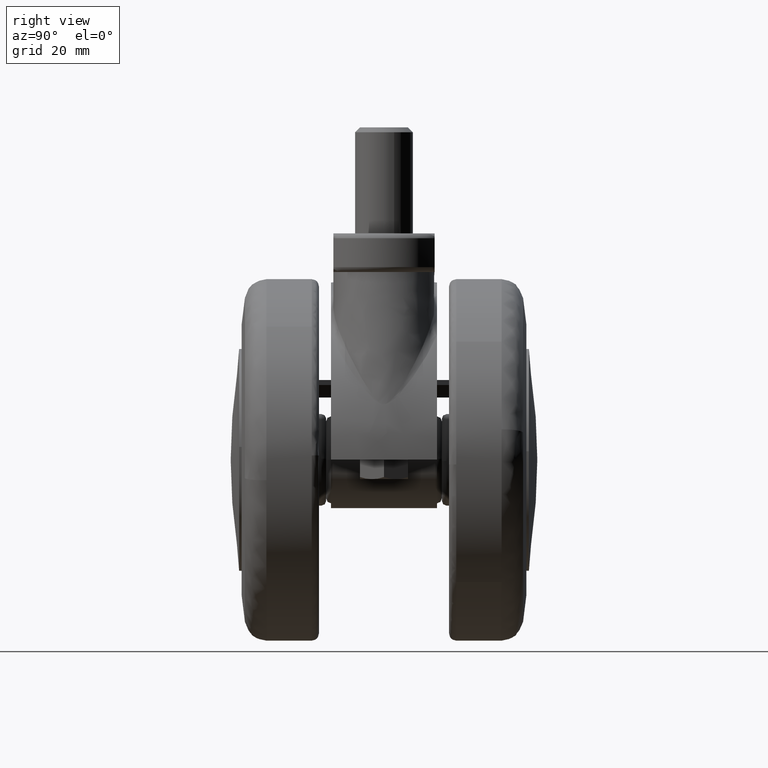
[diagram: clean part render]
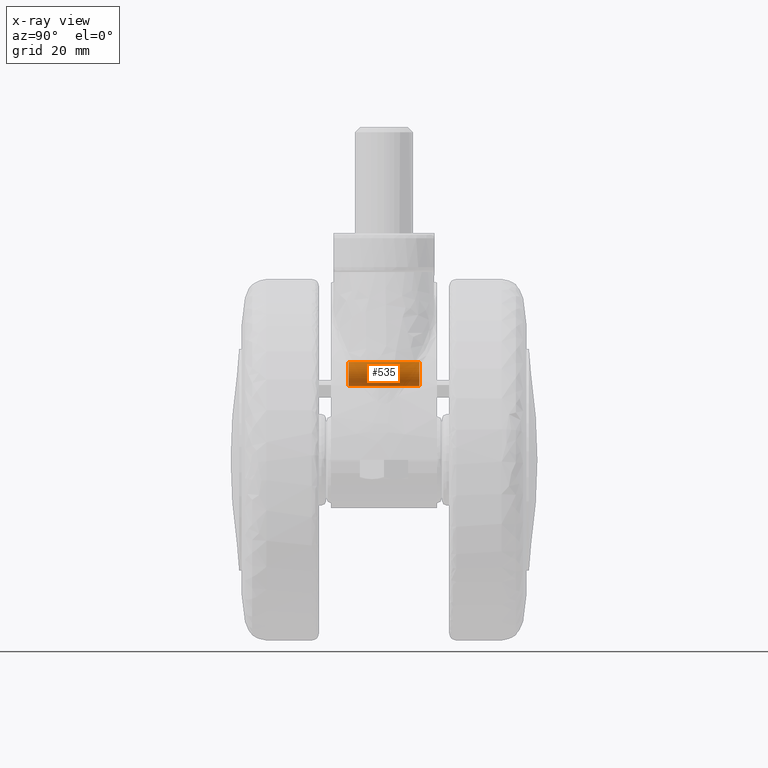
[diagram: x-ray — body ghosted, one internal face saturated and labeled with its STEP entity id]
A machine part, right view, then the same camera in x-ray: the body is ghosted and one INTERNAL B-rep face — a face not visible from any outside direction — is saturated and labeled: STEP entity #535.
In plain terms, the highlighted face is a freeform B-spline surface patch.
Its self-contained STEP definition (entity closure, byte-faithful):
#416=CARTESIAN_POINT('',(-26.489368041331382,7.717500000000200,15.845553198639694));
#417=CARTESIAN_POINT('',(-24.731960584343895,7.717500000000200,14.478945825293152));
#418=CARTESIAN_POINT('',(-23.171575877114549,7.717500000000200,16.066804839250370));
#419=CARTESIAN_POINT('',(-21.419302716364914,7.717500000000200,17.849930962135829));
#420=CARTESIAN_POINT('',(-23.202428839250370,7.717500000000200,19.602204122885450));
#421=CARTESIAN_POINT('',(-24.985554962135822,7.717500000000200,21.354477283635077));
#422=CARTESIAN_POINT('',(-26.737828122885450,7.717500000000200,19.571351160749629));
#423=CARTESIAN_POINT('',(-26.489368041331382,-7.726687500000200,15.845553198639694));
#424=CARTESIAN_POINT('',(-24.731960584343895,-7.726687500000200,14.478945825293152));
#425=CARTESIAN_POINT('',(-23.171575877114549,-7.726687500000200,16.066804839250370));
#426=CARTESIAN_POINT('',(-21.419302716364914,-7.726687500000201,17.849930962135829));
#427=CARTESIAN_POINT('',(-23.202428839250370,-7.726687500000200,19.602204122885450));
#428=CARTESIAN_POINT('',(-24.985554962135822,-7.726687500000201,21.354477283635077));
#429=CARTESIAN_POINT('',(-26.737828122885450,-7.726687500000200,19.571351160749629));
#437=(BOUNDED_SURFACE()B_SPLINE_SURFACE(2,1,((#416,#423),(#417,#424),(#418,#425),(#419,#426),(#420,#427),(#421,#428),(#422,#429)),.UNSPECIFIED.,.F.,.F.,.U.)B_SPLINE_SURFACE_WITH_KNOTS((3,2,2,3),(2,2),(0.0,3.810764773832473,7.952900397563421,12.095036021294369),(0.0,15.444187500000400),.UNSPECIFIED.)GEOMETRIC_REPRESENTATION_ITEM()RATIONAL_B_SPLINE_SURFACE(((0.956886118190660,0.956886118190660),(0.730538238691624,0.730538238691624),(1.0,1.0),(0.707106781186548,0.707106781186548),(1.0,1.0),(0.707106781186548,0.707106781186548),(1.0,1.0)))REPRESENTATION_ITEM('')SURFACE());
#438=CARTESIAN_POINT('',(-26.489368041334689,-7.350000000000191,15.845553198642261));
#439=VERTEX_POINT('',#438);
#440=CARTESIAN_POINT('',(-24.954702000000001,-7.350000000000190,15.319077999999999));
#441=VERTEX_POINT('',#440);
#442=CARTESIAN_POINT('',(-26.489368041334689,-7.350000000000191,15.845553198642262));
#443=CARTESIAN_POINT('',(-25.812340053595403,-7.350000000000189,15.319077999999996));
#444=CARTESIAN_POINT('',(-24.954702000000001,-7.350000000000190,15.319077999999999));
#452=(BOUNDED_CURVE()B_SPLINE_CURVE(2,(#442,#443,#444),.UNSPECIFIED.,.F.,.U.)B_SPLINE_CURVE_WITH_KNOTS((3,3),(0.893802175131246,1.0),.UNSPECIFIED.)CURVE()GEOMETRIC_REPRESENTATION_ITEM()RATIONAL_B_SPLINE_CURVE((0.856866802909945,0.875581508972813,1.0))REPRESENTATION_ITEM(''));
#453=EDGE_CURVE('',#439,#441,#452,.T.);
#454=ORIENTED_EDGE('',*,*,#453,.F.);
#455=CARTESIAN_POINT('',(-26.489368041334320,7.350000000000190,15.845553198641969));
#456=VERTEX_POINT('',#455);
#457=CARTESIAN_POINT('',(-26.489368041334320,7.350000000000190,15.845553198641969));
#458=CARTESIAN_POINT('',(-26.489368041334689,-7.350000000000191,15.845553198642261));
#459=QUASI_UNIFORM_CURVE('',1,(#457,#458),.UNSPECIFIED.,.F.,.U.);
#460=EDGE_CURVE('',#456,#439,#459,.T.);
#461=ORIENTED_EDGE('',*,*,#460,.F.);
#462=CARTESIAN_POINT('',(-22.454702000000001,7.350000000000190,17.819078000000001));
#463=VERTEX_POINT('',#462);
#464=CARTESIAN_POINT('',(-22.454702000000001,7.350000000000190,17.819078000000001));
#465=CARTESIAN_POINT('',(-22.454701999999997,7.350000000000190,15.319077999999994));
#466=CARTESIAN_POINT('',(-24.954702000000001,7.350000000000190,15.319077999999999));
#467=CARTESIAN_POINT('',(-25.812340053594866,7.350000000000190,15.319078000000001));
#468=CARTESIAN_POINT('',(-26.489368041334327,7.350000000000190,15.845553198641978));
#476=(BOUNDED_CURVE()B_SPLINE_CURVE(2,(#464,#465,#466,#467,#468),.UNSPECIFIED.,.F.,.U.)B_SPLINE_CURVE_WITH_KNOTS((3,2,3),(0.500000000000000,0.750000000000000,0.856197824868696),.UNSPECIFIED.)CURVE()GEOMETRIC_REPRESENTATION_ITEM()RATIONAL_B_SPLINE_CURVE((1.0,0.707106781186548,1.0,0.875581508972881,0.856866802909966))REPRESENTATION_ITEM(''));
#477=EDGE_CURVE('',#463,#456,#476,.T.);
#478=ORIENTED_EDGE('',*,*,#477,.F.);
#479=CARTESIAN_POINT('',(-26.737828440055111,7.350000000000211,19.571350837995318));
#480=VERTEX_POINT('',#479);
#481=CARTESIAN_POINT('',(-26.737828440055114,7.350000000000211,19.571350837995322));
#482=CARTESIAN_POINT('',(-26.003039536478241,7.350000000000191,20.319077999999998));
#483=CARTESIAN_POINT('',(-24.954702000000001,7.350000000000190,20.319078000000001));
#484=CARTESIAN_POINT('',(-22.454701999999997,7.350000000000190,20.319077999999998));
#485=CARTESIAN_POINT('',(-22.454702000000001,7.350000000000190,17.819078000000001));
#493=(BOUNDED_CURVE()B_SPLINE_CURVE(2,(#481,#482,#483,#484,#485),.UNSPECIFIED.,.F.,.U.)B_SPLINE_CURVE_WITH_KNOTS((3,2,3),(0.123683187784862,0.250000000000000,0.500000000000000),.UNSPECIFIED.)CURVE()GEOMETRIC_REPRESENTATION_ITEM()RATIONAL_B_SPLINE_CURVE((0.853569642599806,0.852010649120215,1.0,0.707106781186548,1.0))REPRESENTATION_ITEM(''));
#494=EDGE_CURVE('',#480,#463,#493,.T.);
#495=ORIENTED_EDGE('',*,*,#494,.F.);
#496=CARTESIAN_POINT('',(-26.737828470238139,-7.350000000000189,19.571350807280819));
#497=VERTEX_POINT('',#496);
#498=CARTESIAN_POINT('',(-26.737828440055111,7.350000000000211,19.571350837995318));
#499=CARTESIAN_POINT('',(-26.737828470238139,-7.350000000000189,19.571350807280819));
#500=QUASI_UNIFORM_CURVE('',1,(#498,#499),.UNSPECIFIED.,.F.,.U.);
#501=EDGE_CURVE('',#480,#497,#500,.T.);
#502=ORIENTED_EDGE('',*,*,#501,.T.);
#503=CARTESIAN_POINT('',(-24.954702000000001,-7.350000000000190,20.319078000000001));
#504=VERTEX_POINT('',#503);
#505=CARTESIAN_POINT('',(-24.954702000000001,-7.350000000000190,20.319078000000001));
#506=CARTESIAN_POINT('',(-26.003039587113161,-7.350000000000190,20.319077999999998));
#507=CARTESIAN_POINT('',(-26.737828470238146,-7.350000000000189,19.571350807280815));
#515=(BOUNDED_CURVE()B_SPLINE_CURVE(2,(#505,#506,#507),.UNSPECIFIED.,.F.,.U.)B_SPLINE_CURVE_WITH_KNOTS((3,3),(0.500000000000000,0.626316817413363),.UNSPECIFIED.)CURVE()GEOMETRIC_REPRESENTATION_ITEM()RATIONAL_B_SPLINE_CURVE((1.0,0.852010643030115,0.853569642728119))REPRESENTATION_ITEM(''));
#516=EDGE_CURVE('',#504,#497,#515,.T.);
#517=ORIENTED_EDGE('',*,*,#516,.F.);
#518=CARTESIAN_POINT('',(-24.954702000000001,-7.350000000000190,15.319077999999999));
#519=CARTESIAN_POINT('',(-22.454701999999997,-7.350000000000190,15.319077999999994));
#520=CARTESIAN_POINT('',(-22.454702000000001,-7.350000000000190,17.819078000000001));
#521=CARTESIAN_POINT('',(-22.454701999999997,-7.350000000000190,20.319077999999998));
#522=CARTESIAN_POINT('',(-24.954702000000001,-7.350000000000190,20.319078000000001));
#530=(BOUNDED_CURVE()B_SPLINE_CURVE(2,(#518,#519,#520,#521,#522),.UNSPECIFIED.,.F.,.U.)B_SPLINE_CURVE_WITH_KNOTS((3,2,3),(0.0,0.250000000000000,0.500000000000000),.UNSPECIFIED.)CURVE()GEOMETRIC_REPRESENTATION_ITEM()RATIONAL_B_SPLINE_CURVE((1.0,0.707106781186548,1.0,0.707106781186548,1.0))REPRESENTATION_ITEM(''));
#531=EDGE_CURVE('',#441,#504,#530,.T.);
#532=ORIENTED_EDGE('',*,*,#531,.F.);
#533=EDGE_LOOP('',(#454,#461,#478,#495,#502,#517,#532));
#534=FACE_OUTER_BOUND('',#533,.T.);
#535=ADVANCED_FACE('',(#534),#437,.T.);